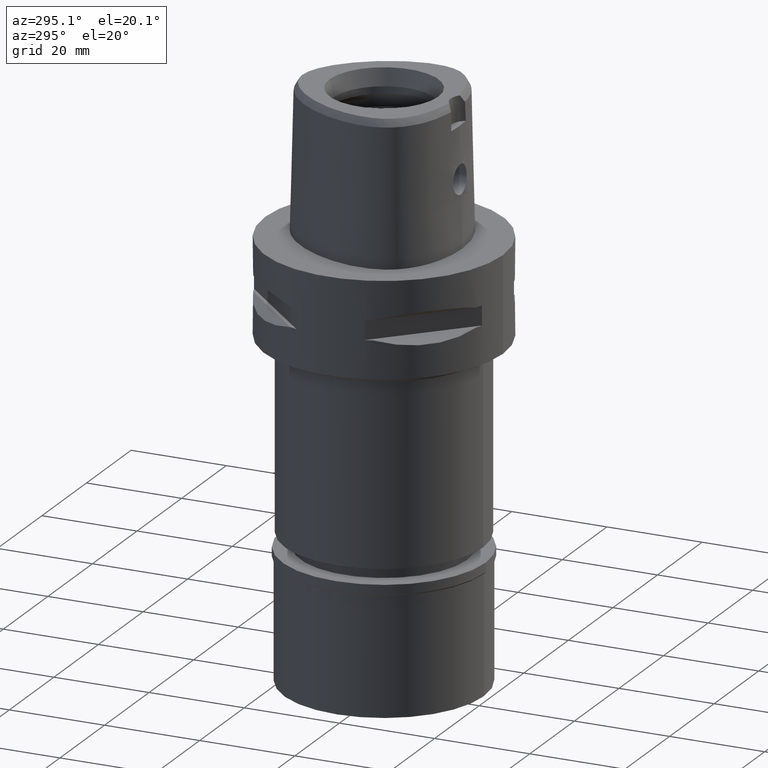
[diagram: clean part render]
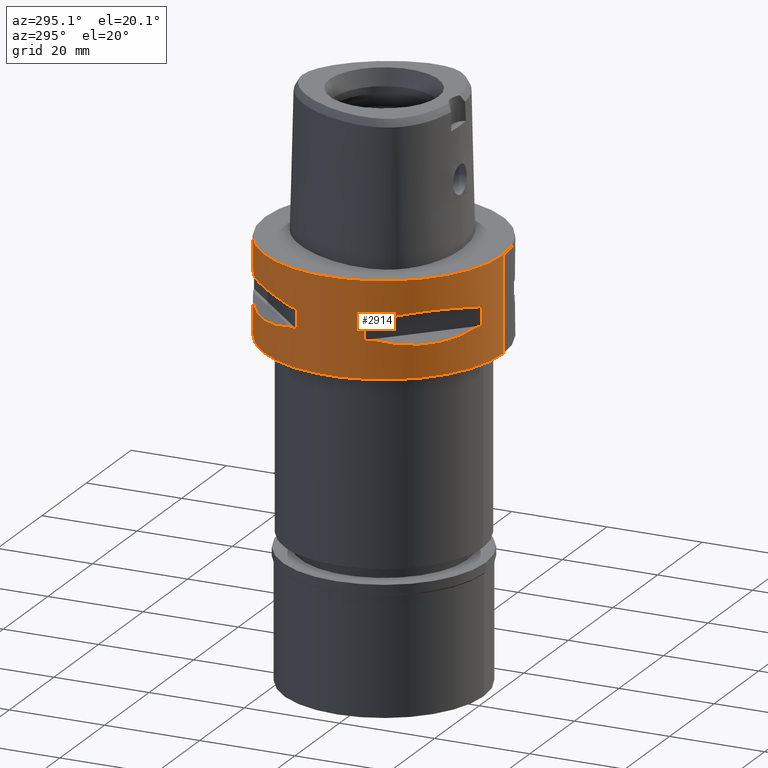
[diagram: same view with one face highlighted and labeled with its STEP entity id]
A machine part, auxiliary view. The second image highlights one B-rep face of the part: STEP entity #2914.
In plain terms, the highlighted cylindrical surface (partial cylindrical patch) has radius 25 mm, axis along (0, 0, -1).
Its self-contained STEP definition (entity closure, byte-faithful):
#2 = CARTESIAN_POINT ( 'NONE',  ( -22.81626994450270374, 10.38516041961251268, -12.49816953212508608 ) ) ;
#28 = EDGE_LOOP ( 'NONE', ( #3146, #2766, #470, #1079 ) ) ;
#30 = CARTESIAN_POINT ( 'NONE',  ( -23.45715880140000209, 8.646484890751999330, -7.949999999998999201 ) ) ;
#98 = CARTESIAN_POINT ( 'NONE',  ( -14.85488513037629943, -20.11654071403241417, -13.22076716108376360 ) ) ;
#100 = AXIS2_PLACEMENT_3D ( 'NONE', #1117, #1436, #628 ) ;
#109 = CARTESIAN_POINT ( 'NONE',  ( -7.159921374230999724, 23.95277699797999915, -7.950000000000000178 ) ) ;
#141 = CARTESIAN_POINT ( 'NONE',  ( 0.0000000000000000000, 1.273020347714000000E-14, -7.950000000000000178 ) ) ;
#158 = CIRCLE ( 'NONE', #839, 25.00000000000001066 ) ;
#159 = CARTESIAN_POINT ( 'NONE',  ( -10.78455809746692928, 22.58788056561475344, -12.56798337783328634 ) ) ;
#177 = VERTEX_POINT ( 'NONE', #2578 ) ;
#182 = ORIENTED_EDGE ( 'NONE', *, *, #3724, .T. ) ;
#210 = LINE ( 'NONE', #562, #618 ) ;
#211 = CARTESIAN_POINT ( 'NONE',  ( -13.62920640916616577, -20.95817024473919687, -13.06397973560672554 ) ) ;
#240 = AXIS2_PLACEMENT_3D ( 'NONE', #3458, #3840, #2343 ) ;
#255 = CARTESIAN_POINT ( 'NONE',  ( -8.646484890756999775, 23.45715880140000209, -12.05000000000000071 ) ) ;
#280 = CARTESIAN_POINT ( 'NONE',  ( -23.45715880140000209, 8.646484890751999330, -7.949999999998999201 ) ) ;
#298 = EDGE_CURVE ( 'NONE', #1573, #1024, #4476, .T. ) ;
#320 = CIRCLE ( 'NONE', #911, 25.00000000000001066 ) ;
#375 = CARTESIAN_POINT ( 'NONE',  ( -20.92801700160071476, 13.67544437571354266, -13.07054629644097687 ) ) ;
#376 = ORIENTED_EDGE ( 'NONE', *, *, #3184, .F. ) ;
#385 = CARTESIAN_POINT ( 'NONE',  ( 0.0000000000000000000, 1.273020347714000000E-14, -12.05000000000000071 ) ) ;
#414 = CIRCLE ( 'NONE', #1345, 24.99999999999999645 ) ;
#415 = FACE_BOUND ( 'NONE', #3297, .T. ) ;
#439 = CARTESIAN_POINT ( 'NONE',  ( -8.646484890751999330, -23.45715880140000209, -12.05000000000000071 ) ) ;
#444 = CARTESIAN_POINT ( 'NONE',  ( -8.646484890751999330, -23.45715880140000209, -7.949999999998999201 ) ) ;
#465 = EDGE_CURVE ( 'NONE', #1094, #1776, #414, .T. ) ;
#470 = ORIENTED_EDGE ( 'NONE', *, *, #2762, .T. ) ;
#503 = CARTESIAN_POINT ( 'NONE',  ( -21.20561591939681989, -13.24197703503267753, -13.00691327926098140 ) ) ;
#535 = CIRCLE ( 'NONE', #2973, 24.99999999999999645 ) ;
#536 = CARTESIAN_POINT ( 'NONE',  ( -20.11654071400031540, 14.85488513041178749, -13.22076716108514027 ) ) ;
#542 = DIRECTION ( 'NONE',  ( 0.0000000000000000000, 0.0000000000000000000, 1.000000000000000000 ) ) ;
#545 = CARTESIAN_POINT ( 'NONE',  ( 0.0000000000000000000, 25.00000000000000000, 0.0000000000000000000 ) ) ;
#547 = EDGE_CURVE ( 'NONE', #3440, #1573, #1122, .T. ) ;
#562 = CARTESIAN_POINT ( 'NONE',  ( 0.0000000000000000000, -25.00000000000000000, 0.0000000000000000000 ) ) ;
#588 = CARTESIAN_POINT ( 'NONE',  ( -8.646484890751999330, 23.45715880140000209, -7.949999999998999201 ) ) ;
#609 = CARTESIAN_POINT ( 'NONE',  ( -21.05082155772163333, -13.48572973711064193, -13.04323036965292637 ) ) ;
#618 = VECTOR ( 'NONE', #2470, 1000.000000000000000 ) ;
#628 = DIRECTION ( 'NONE',  ( 0.0000000000000000000, -1.000000000000000000, 0.0000000000000000000 ) ) ;
#672 = CARTESIAN_POINT ( 'NONE',  ( -23.95277699797999915, -7.159921374230999724, -12.05000000000000071 ) ) ;
#692 = ORIENTED_EDGE ( 'NONE', *, *, #2735, .T. ) ;
#765 = CARTESIAN_POINT ( 'NONE',  ( 0.0000000000000000000, 1.273020347714000000E-14, -7.950000000000000178 ) ) ;
#821 = CARTESIAN_POINT ( 'NONE',  ( -15.02698525050127465, -20.06074199764947963, -6.733118915116993008 ) ) ;
#822 = CARTESIAN_POINT ( 'NONE',  ( -23.95277699797999915, 7.159921374235000080, -12.05000000000000071 ) ) ;
#839 = AXIS2_PLACEMENT_3D ( 'NONE', #4411, #1418, #2934 ) ;
#860 = CARTESIAN_POINT ( 'NONE',  ( -23.13678124605149833, -9.515641234297431694, -12.27403800212630891 ) ) ;
#896 = CARTESIAN_POINT ( 'NONE',  ( -19.18226349636000805, 16.07509500021993887, -13.33749867752047358 ) ) ;
#911 = AXIS2_PLACEMENT_3D ( 'NONE', #765, #1895, #4504 ) ;
#916 = CARTESIAN_POINT ( 'NONE',  ( -20.88268233905774807, 13.74471461762043312, -13.08031795579756640 ) ) ;
#972 = CARTESIAN_POINT ( 'NONE',  ( -8.646484890756999775, 23.45715880140000209, -12.05000000000000071 ) ) ;
#1014 = AXIS2_PLACEMENT_3D ( 'NONE', #2845, #3144, #1274 ) ;
#1022 = CARTESIAN_POINT ( 'NONE',  ( -11.99631184311074605, 22.00754773658079344, -7.175632472892015556 ) ) ;
#1024 = VERTEX_POINT ( 'NONE', #2434 ) ;
#1035 = DIRECTION ( 'NONE',  ( -0.9581110799190402094, -0.2863968549694120291, 0.0000000000000000000 ) ) ;
#1079 = ORIENTED_EDGE ( 'NONE', *, *, #3463, .T. ) ;
#1090 = CARTESIAN_POINT ( 'NONE',  ( -20.06074199764948673, 15.02698525050129064, -6.733118915116993008 ) ) ;
#1094 = VERTEX_POINT ( 'NONE', #2962 ) ;
#1117 = CARTESIAN_POINT ( 'NONE',  ( 0.0000000000000000000, 1.273020347714000000E-14, 0.0000000000000000000 ) ) ;
#1122 = B_SPLINE_CURVE_WITH_KNOTS ( 'NONE', 3,
 ( #2296, #3101, #2621, #2270, #2248, #3801, #821, #4119, #2323, #444 ),
 .UNSPECIFIED., .F., .F.,
 ( 4, 2, 2, 2, 4 ),
 ( 0.0000000000000000000, 0.2499999999999998335, 0.4999999999999996669, 0.7499999999999997780, 1.000000000000000000 ),
 .UNSPECIFIED. ) ;
#1165 = LINE ( 'NONE', #109, #2655 ) ;
#1169 = EDGE_CURVE ( 'NONE', #2695, #2821, #4379, .T. ) ;
#1212 = CARTESIAN_POINT ( 'NONE',  ( -13.74471461761470792, -20.88268233906292437, -13.08031795579734791 ) ) ;
#1222 = EDGE_CURVE ( 'NONE', #1094, #177, #1165, .T. ) ;
#1274 = DIRECTION ( 'NONE',  ( -0.2863968549694120291, -0.9581110799190402094, 0.0000000000000000000 ) ) ;
#1297 = CARTESIAN_POINT ( 'NONE',  ( -20.77616787492827655, 13.90573822668830140, -13.10257122103331362 ) ) ;
#1312 = EDGE_CURVE ( 'NONE', #2784, #3961, #4530, .T. ) ;
#1321 = CARTESIAN_POINT ( 'NONE',  ( -10.38516041956038016, -22.81626994452193458, -12.49816953211165860 ) ) ;
#1345 = AXIS2_PLACEMENT_3D ( 'NONE', #141, #3748, #3076 ) ;
#1348 = CARTESIAN_POINT ( 'NONE',  ( -23.45715880140000209, -8.646484890751999330, -7.949999999998999201 ) ) ;
#1367 = CARTESIAN_POINT ( 'NONE',  ( -18.92421359266165126, -16.43106916201666934, -13.37747608848409264 ) ) ;
#1398 = CARTESIAN_POINT ( 'NONE',  ( -23.95277699797999915, 7.159921374230999724, -12.05000000000000071 ) ) ;
#1418 = DIRECTION ( 'NONE',  ( 0.0000000000000000000, 0.0000000000000000000, -1.000000000000000000 ) ) ;
#1436 = DIRECTION ( 'NONE',  ( 0.0000000000000000000, 0.0000000000000000000, -1.000000000000000000 ) ) ;
#1479 = VECTOR ( 'NONE', #1564, 1000.000000000000000 ) ;
#1485 = CARTESIAN_POINT ( 'NONE',  ( -15.02693924547573445, 20.06077645874711024, -6.733132781305680048 ) ) ;
#1543 = EDGE_CURVE ( 'NONE', #3621, #2821, #210, .T. ) ;
#1564 = DIRECTION ( 'NONE',  ( 0.0000000000000000000, 0.0000000000000000000, -1.000000000000000000 ) ) ;
#1573 = VERTEX_POINT ( 'NONE', #4346 ) ;
#1578 = VECTOR ( 'NONE', #3900, 1000.000000000000000 ) ;
#1581 = CARTESIAN_POINT ( 'NONE',  ( -14.22535762327708397, -20.56020460723788901, -13.14488865845220289 ) ) ;
#1642 = CARTESIAN_POINT ( 'NONE',  ( -12.89853354822446718, 21.41803043592210543, -12.95342092614171570 ) ) ;
#1657 = CARTESIAN_POINT ( 'NONE',  ( -12.20403021318853476, 21.82791133048002763, -12.83722430138890225 ) ) ;
#1689 = CARTESIAN_POINT ( 'NONE',  ( -13.60713573003076249, -20.97251445226584110, -13.06082541678113174 ) ) ;
#1702 = VERTEX_POINT ( 'NONE', #4659 ) ;
#1776 = VERTEX_POINT ( 'NONE', #588 ) ;
#1802 = CIRCLE ( 'NONE', #3461, 24.99999999999999645 ) ;
#1830 = ORIENTED_EDGE ( 'NONE', *, *, #1312, .F. ) ;
#1872 = ORIENTED_EDGE ( 'NONE', *, *, #2386, .F. ) ;
#1894 = CARTESIAN_POINT ( 'NONE',  ( 0.0000000000000000000, 1.273020347714000000E-14, 3.950000000000000178 ) ) ;
#1895 = DIRECTION ( 'NONE',  ( 0.0000000000000000000, 0.0000000000000000000, 1.000000000000000000 ) ) ;
#1930 = DIRECTION ( 'NONE',  ( -0.3458593956303108730, 0.9382863520558295534, 0.0000000000000000000 ) ) ;
#1950 = AXIS2_PLACEMENT_3D ( 'NONE', #1894, #4161, #4527 ) ;
#1973 = EDGE_LOOP ( 'NONE', ( #2046, #376, #692, #1872, #2203, #1830, #3021, #4198 ) ) ;
#1979 = VERTEX_POINT ( 'NONE', #3756 ) ;
#1984 = ORIENTED_EDGE ( 'NONE', *, *, #465, .T. ) ;
#1988 = CARTESIAN_POINT ( 'NONE',  ( -21.01958685664054372, -13.53433973752400377, -13.05032380590162511 ) ) ;
#2046 = ORIENTED_EDGE ( 'NONE', *, *, #298, .T. ) ;
#2049 = DIRECTION ( 'NONE',  ( -0.3458593956303108730, -0.9382863520558295534, 0.0000000000000000000 ) ) ;
#2087 = EDGE_CURVE ( 'NONE', #2494, #1702, #2161, .T. ) ;
#2093 = B_SPLINE_CURVE_WITH_KNOTS ( 'NONE', 3,
 ( #4382, #3644, #1022, #1485, #2994, #2514, #1090, #3354, #4403, #280 ),
 .UNSPECIFIED., .F., .F.,
 ( 4, 2, 2, 2, 4 ),
 ( 0.0000000000000000000, 0.2500000000000000000, 0.5000000000000000000, 0.7500000000000000000, 1.000000000000000000 ),
 .UNSPECIFIED. ) ;
#2097 = CARTESIAN_POINT ( 'NONE',  ( 0.0000000000000000000, -25.00000000000000000, 0.0000000000000000000 ) ) ;
#2099 = CARTESIAN_POINT ( 'NONE',  ( -21.00321793043546847, -13.55971422200801157, -13.05400030967367364 ) ) ;
#2149 = EDGE_CURVE ( 'NONE', #2784, #3440, #535, .T. ) ;
#2161 = LINE ( 'NONE', #1398, #4607 ) ;
#2173 = EDGE_CURVE ( 'NONE', #4362, #3961, #158, .T. ) ;
#2203 = ORIENTED_EDGE ( 'NONE', *, *, #2173, .T. ) ;
#2248 = CARTESIAN_POINT ( 'NONE',  ( -18.93096040781556511, -16.42437865151180176, -6.622505547253060065 ) ) ;
#2263 = FACE_OUTER_BOUND ( 'NONE', #28, .T. ) ;
#2270 = CARTESIAN_POINT ( 'NONE',  ( -20.06077645874710669, -15.02693924547572557, -6.733132781305681824 ) ) ;
#2296 = CARTESIAN_POINT ( 'NONE',  ( -23.45715880140000209, -8.646484890751999330, -7.949999999998999201 ) ) ;
#2308 = CARTESIAN_POINT ( 'NONE',  ( -20.02826730454556170, -15.06560254766883666, -13.27075471794798744 ) ) ;
#2323 = CARTESIAN_POINT ( 'NONE',  ( -10.36318218122985790, -22.82437128822188299, -7.507495686399606960 ) ) ;
#2343 = DIRECTION ( 'NONE',  ( 0.0000000000000000000, 1.000000000000000000, 0.0000000000000000000 ) ) ;
#2350 = VECTOR ( 'NONE', #2442, 1000.000000000000000 ) ;
#2386 = EDGE_CURVE ( 'NONE', #4362, #4480, #4451, .T. ) ;
#2404 = EDGE_CURVE ( 'NONE', #2840, #1702, #320, .T. ) ;
#2434 = CARTESIAN_POINT ( 'NONE',  ( -7.159921374230999724, -23.95277699797999915, -7.950000000000000178 ) ) ;
#2442 = DIRECTION ( 'NONE',  ( 0.0000000000000000000, 0.0000000000000000000, 1.000000000000000000 ) ) ;
#2470 = DIRECTION ( 'NONE',  ( 0.0000000000000000000, 0.0000000000000000000, -1.000000000000000000 ) ) ;
#2474 = LINE ( 'NONE', #545, #1578 ) ;
#2487 = CARTESIAN_POINT ( 'NONE',  ( -9.515641234306031038, 23.13678124604833286, -12.27403800212850093 ) ) ;
#2494 = VERTEX_POINT ( 'NONE', #822 ) ;
#2514 = CARTESIAN_POINT ( 'NONE',  ( -18.93096040781557221, 16.42437865151181953, -6.622496303226937719 ) ) ;
#2532 = DIRECTION ( 'NONE',  ( 0.0000000000000000000, 0.0000000000000000000, -1.000000000000000000 ) ) ;
#2542 = LINE ( 'NONE', #3575, #2350 ) ;
#2578 = CARTESIAN_POINT ( 'NONE',  ( -7.159921374230999724, 23.95277699797999915, -12.05000000000000071 ) ) ;
#2613 = FACE_BOUND ( 'NONE', #1973, .T. ) ;
#2621 = CARTESIAN_POINT ( 'NONE',  ( -22.00754773658078634, -11.99631184311072651, -7.175632472892016445 ) ) ;
#2655 = VECTOR ( 'NONE', #3505, 1000.000000000000000 ) ;
#2694 = CARTESIAN_POINT ( 'NONE',  ( -23.95277699797999915, -7.159921374230999724, -7.950000000000000178 ) ) ;
#2695 = VERTEX_POINT ( 'NONE', #4673 ) ;
#2735 = EDGE_CURVE ( 'NONE', #1979, #4480, #3997, .T. ) ;
#2749 = EDGE_CURVE ( 'NONE', #3647, #3556, #2761, .T. ) ;
#2761 = B_SPLINE_CURVE_WITH_KNOTS ( 'NONE', 3,
 ( #972, #2487, #159, #1657, #1642, #3169, #3213, #4633, #3939, #2781, #2800, #4273, #4291, #896, #536, #4654, #1297, #916, #375, #4045, #4800, #3335, #2, #4064 ),
 .UNSPECIFIED., .F., .F.,
 ( 4, 1, 1, 1, 1, 1, 2, 2, 2, 1, 1, 1, 1, 1, 2, 2, 4 ),
 ( 0.0000000000000000000, 0.1250000000000042744, 0.1875000000000064115, 0.2187500000000075218, 0.2343750000000079659, 0.2421875000000081601, 0.2460937500000082989, 0.2500000000000084377, 0.5000000000000065503, 0.6250000000000055511, 0.6875000000000051070, 0.7187500000000047740, 0.7343750000000045519, 0.7421875000000042188, 0.7460937500000041078, 0.7500000000000039968, 1.000000000000000000 ),
 .UNSPECIFIED. ) ;
#2762 = EDGE_CURVE ( 'NONE', #3621, #4110, #3754, .T. ) ;
#2766 = ORIENTED_EDGE ( 'NONE', *, *, #1543, .F. ) ;
#2781 = CARTESIAN_POINT ( 'NONE',  ( -13.55971422200804888, 21.00321793043550755, -13.05400030967368785 ) ) ;
#2782 = EDGE_CURVE ( 'NONE', #1776, #2840, #2093, .T. ) ;
#2784 = VERTEX_POINT ( 'NONE', #2928 ) ;
#2800 = CARTESIAN_POINT ( 'NONE',  ( -15.06560254766712248, 20.02826730454206228, -13.27075471794584693 ) ) ;
#2821 = VERTEX_POINT ( 'NONE', #4429 ) ;
#2840 = VERTEX_POINT ( 'NONE', #30 ) ;
#2845 = CARTESIAN_POINT ( 'NONE',  ( 0.0000000000000000000, 1.273020347714000000E-14, -12.05000000000000071 ) ) ;
#2887 = CARTESIAN_POINT ( 'NONE',  ( 0.0000000000000000000, 1.273020347714000000E-14, -7.950000000000000178 ) ) ;
#2914 = ADVANCED_FACE ( 'NONE', ( #2263, #415, #2613 ), #3404, .T. ) ;
#2928 = CARTESIAN_POINT ( 'NONE',  ( -23.95277699797999915, -7.159921374235000080, -7.950000000000000178 ) ) ;
#2934 = DIRECTION ( 'NONE',  ( -0.9382863520558295534, -0.3458593956303108730, 0.0000000000000000000 ) ) ;
#2942 = CARTESIAN_POINT ( 'NONE',  ( -8.646484890751999330, -23.45715880140000209, -12.05000000000000071 ) ) ;
#2962 = CARTESIAN_POINT ( 'NONE',  ( -7.159921374235000080, 23.95277699797999915, -7.950000000000000178 ) ) ;
#2966 = EDGE_CURVE ( 'NONE', #3647, #177, #4624, .T. ) ;
#2973 = AXIS2_PLACEMENT_3D ( 'NONE', #2887, #4395, #1035 ) ;
#2994 = CARTESIAN_POINT ( 'NONE',  ( -16.42437865151180887, 18.93096040781557932, -6.622505547253060065 ) ) ;
#2998 = AXIS2_PLACEMENT_3D ( 'NONE', #4636, #542, #2049 ) ;
#3021 = ORIENTED_EDGE ( 'NONE', *, *, #2149, .T. ) ;
#3076 = DIRECTION ( 'NONE',  ( -0.2863968549694120291, 0.9581110799190402094, 0.0000000000000000000 ) ) ;
#3085 = CARTESIAN_POINT ( 'NONE',  ( -13.90573822667720982, -20.77616787493829875, -13.10257122103289262 ) ) ;
#3101 = CARTESIAN_POINT ( 'NONE',  ( -22.82438450745432235, -10.36314631860613389, -7.507504930525400688 ) ) ;
#3131 = ORIENTED_EDGE ( 'NONE', *, *, #1222, .F. ) ;
#3144 = DIRECTION ( 'NONE',  ( 0.0000000000000000000, 0.0000000000000000000, -1.000000000000000000 ) ) ;
#3146 = ORIENTED_EDGE ( 'NONE', *, *, #1169, .T. ) ;
#3169 = CARTESIAN_POINT ( 'NONE',  ( -13.24197703503622137, 21.20561591939551249, -13.00691327926188201 ) ) ;
#3184 = EDGE_CURVE ( 'NONE', #1979, #1024, #2542, .T. ) ;
#3213 = CARTESIAN_POINT ( 'NONE',  ( -13.41274673326554101, 21.09754014382029297, -13.03250796600789663 ) ) ;
#3217 = CARTESIAN_POINT ( 'NONE',  ( -21.09754014382098930, -13.41274673326371136, -13.03250796600744721 ) ) ;
#3219 = AXIS2_PLACEMENT_3D ( 'NONE', #385, #3782, #1930 ) ;
#3297 = EDGE_LOOP ( 'NONE', ( #4049, #3428, #182, #4190, #4600, #3131, #1984, #3614 ) ) ;
#3335 = CARTESIAN_POINT ( 'NONE',  ( -21.99328990738197120, 12.03062603426555199, -12.83394786308387481 ) ) ;
#3348 = CARTESIAN_POINT ( 'NONE',  ( 0.0000000000000000000, 1.273020347714000000E-14, -12.05000000000000071 ) ) ;
#3354 = CARTESIAN_POINT ( 'NONE',  ( -22.00752022556850207, 11.99636231264438813, -7.175618606703325852 ) ) ;
#3404 = CYLINDRICAL_SURFACE ( 'NONE', #1950, 25.00000000000000000 ) ;
#3428 = ORIENTED_EDGE ( 'NONE', *, *, #2087, .F. ) ;
#3440 = VERTEX_POINT ( 'NONE', #1348 ) ;
#3458 = CARTESIAN_POINT ( 'NONE',  ( 0.0000000000000000000, 1.273020347714000000E-14, -20.00000000000000000 ) ) ;
#3461 = AXIS2_PLACEMENT_3D ( 'NONE', #3348, #2532, #4039 ) ;
#3463 = EDGE_CURVE ( 'NONE', #4110, #2695, #2474, .T. ) ;
#3501 = CARTESIAN_POINT ( 'NONE',  ( -13.67544437571023153, -20.92801700160370970, -13.07054629644085786 ) ) ;
#3505 = DIRECTION ( 'NONE',  ( 0.0000000000000000000, 0.0000000000000000000, -1.000000000000000000 ) ) ;
#3556 = VERTEX_POINT ( 'NONE', #4357 ) ;
#3575 = CARTESIAN_POINT ( 'NONE',  ( -7.159921374230999724, -23.95277699797999915, -12.05000000000000071 ) ) ;
#3579 = CARTESIAN_POINT ( 'NONE',  ( -22.58788056562029922, -10.78455809745187111, -12.56798337782941744 ) ) ;
#3606 = DIRECTION ( 'NONE',  ( 0.0000000000000000000, 0.0000000000000000000, 1.000000000000000000 ) ) ;
#3614 = ORIENTED_EDGE ( 'NONE', *, *, #2782, .T. ) ;
#3621 = VERTEX_POINT ( 'NONE', #2097 ) ;
#3644 = CARTESIAN_POINT ( 'NONE',  ( -10.36314631860613922, 22.82438450745433300, -7.507504930525399800 ) ) ;
#3647 = VERTEX_POINT ( 'NONE', #255 ) ;
#3724 = EDGE_CURVE ( 'NONE', #2494, #3556, #1802, .T. ) ;
#3748 = DIRECTION ( 'NONE',  ( 0.0000000000000000000, 0.0000000000000000000, 1.000000000000000000 ) ) ;
#3754 = CIRCLE ( 'NONE', #100, 25.00000000000000000 ) ;
#3756 = CARTESIAN_POINT ( 'NONE',  ( -7.159921374235000080, -23.95277699797999915, -12.05000000000000071 ) ) ;
#3782 = DIRECTION ( 'NONE',  ( 0.0000000000000000000, 0.0000000000000000000, -1.000000000000000000 ) ) ;
#3801 = CARTESIAN_POINT ( 'NONE',  ( -16.42437865151179821, -18.93096040781555445, -6.622496303226938608 ) ) ;
#3809 = CARTESIAN_POINT ( 'NONE',  ( -16.07509500017260251, -19.18226349640280048, -13.33749867751863327 ) ) ;
#3840 = DIRECTION ( 'NONE',  ( 0.0000000000000000000, 0.0000000000000000000, 1.000000000000000000 ) ) ;
#3856 = CARTESIAN_POINT ( 'NONE',  ( -21.82791133048418786, -12.20403021317722292, -12.83722430138600323 ) ) ;
#3900 = DIRECTION ( 'NONE',  ( 0.0000000000000000000, 0.0000000000000000000, -1.000000000000000000 ) ) ;
#3939 = CARTESIAN_POINT ( 'NONE',  ( -13.53433973752455621, 21.01958685664031989, -13.05032380590174235 ) ) ;
#3961 = VERTEX_POINT ( 'NONE', #672 ) ;
#3971 = CARTESIAN_POINT ( 'NONE',  ( -21.41803043592453548, -12.89853354821786446, -12.95342092614003171 ) ) ;
#3985 = CARTESIAN_POINT ( 'NONE',  ( 0.0000000000000000000, 25.00000000000000000, 0.0000000000000000000 ) ) ;
#3997 = CIRCLE ( 'NONE', #1014, 24.99999999999999645 ) ;
#4039 = DIRECTION ( 'NONE',  ( -0.9581110799190402094, 0.2863968549694120291, 0.0000000000000000000 ) ) ;
#4045 = CARTESIAN_POINT ( 'NONE',  ( -20.95817024473767987, 13.62920640916783555, -13.06397973560677883 ) ) ;
#4049 = ORIENTED_EDGE ( 'NONE', *, *, #2404, .T. ) ;
#4064 = CARTESIAN_POINT ( 'NONE',  ( -23.45715880140000209, 8.646484890751999330, -12.05000000000000071 ) ) ;
#4110 = VERTEX_POINT ( 'NONE', #3985 ) ;
#4119 = CARTESIAN_POINT ( 'NONE',  ( -11.99636231264437747, -22.00752022556847720, -7.175618606703324076 ) ) ;
#4161 = DIRECTION ( 'NONE',  ( 0.0000000000000000000, 0.0000000000000000000, -1.000000000000000000 ) ) ;
#4179 = CARTESIAN_POINT ( 'NONE',  ( -17.05439749816580886, -18.30096971348830692, -13.37751056790007809 ) ) ;
#4190 = ORIENTED_EDGE ( 'NONE', *, *, #2749, .F. ) ;
#4198 = ORIENTED_EDGE ( 'NONE', *, *, #547, .T. ) ;
#4273 = CARTESIAN_POINT ( 'NONE',  ( -16.43106916206558665, 18.92421359260760383, -13.37747608848198411 ) ) ;
#4291 = CARTESIAN_POINT ( 'NONE',  ( -18.30096971346383938, 17.05439749819285566, -13.37751056790111903 ) ) ;
#4346 = CARTESIAN_POINT ( 'NONE',  ( -8.646484890751999330, -23.45715880140000209, -7.949999999998999201 ) ) ;
#4347 = CARTESIAN_POINT ( 'NONE',  ( -23.45715880140000209, -8.646484890756999775, -12.05000000000000071 ) ) ;
#4357 = CARTESIAN_POINT ( 'NONE',  ( -23.45715880140000209, 8.646484890751999330, -12.05000000000000071 ) ) ;
#4362 = VERTEX_POINT ( 'NONE', #4834 ) ;
#4379 = CIRCLE ( 'NONE', #240, 25.00000000000000000 ) ;
#4382 = CARTESIAN_POINT ( 'NONE',  ( -8.646484890751999330, 23.45715880140000209, -7.949999999998999201 ) ) ;
#4395 = DIRECTION ( 'NONE',  ( 0.0000000000000000000, 0.0000000000000000000, 1.000000000000000000 ) ) ;
#4403 = CARTESIAN_POINT ( 'NONE',  ( -22.82437128822189010, 10.36318218122987744, -7.507495686399606960 ) ) ;
#4411 = CARTESIAN_POINT ( 'NONE',  ( 0.0000000000000000000, 1.273020347714000000E-14, -12.05000000000000071 ) ) ;
#4429 = CARTESIAN_POINT ( 'NONE',  ( 0.0000000000000000000, -25.00000000000000000, -20.00000000000000000 ) ) ;
#4451 = B_SPLINE_CURVE_WITH_KNOTS ( 'NONE', 3,
 ( #4347, #860, #3579, #3856, #3971, #503, #3217, #609, #1988, #2099, #2308, #1367, #4179, #3809, #98, #1581, #3085, #1212, #3501, #211, #1689, #4679, #1321, #439 ),
 .UNSPECIFIED., .F., .F.,
 ( 4, 1, 1, 1, 1, 1, 2, 2, 2, 1, 1, 1, 1, 1, 2, 2, 4 ),
 ( 0.0000000000000000000, 0.1249999999999980294, 0.1874999999999968636, 0.2187499999999962530, 0.2343749999999959754, 0.2421874999999957812, 0.2460937499999955869, 0.2499999999999953926, 0.5000000000000005551, 0.6250000000000031086, 0.6875000000000044409, 0.7187500000000051070, 0.7343750000000054401, 0.7421875000000055511, 0.7460937500000055511, 0.7500000000000055511, 1.000000000000000000 ),
 .UNSPECIFIED. ) ;
#4476 = CIRCLE ( 'NONE', #2998, 25.00000000000001066 ) ;
#4480 = VERTEX_POINT ( 'NONE', #2942 ) ;
#4504 = DIRECTION ( 'NONE',  ( -0.9382863520558295534, 0.3458593956303108730, 0.0000000000000000000 ) ) ;
#4527 = DIRECTION ( 'NONE',  ( 0.0000000000000000000, -1.000000000000000000, 0.0000000000000000000 ) ) ;
#4530 = LINE ( 'NONE', #2694, #1479 ) ;
#4600 = ORIENTED_EDGE ( 'NONE', *, *, #2966, .T. ) ;
#4607 = VECTOR ( 'NONE', #3606, 1000.000000000000000 ) ;
#4624 = CIRCLE ( 'NONE', #3219, 25.00000000000001066 ) ;
#4633 = CARTESIAN_POINT ( 'NONE',  ( -13.48572973711170953, 21.05082155772122832, -13.04323036965318039 ) ) ;
#4636 = CARTESIAN_POINT ( 'NONE',  ( 0.0000000000000000000, 1.273020347714000000E-14, -7.950000000000000178 ) ) ;
#4654 = CARTESIAN_POINT ( 'NONE',  ( -20.56020460721917331, 14.22535762329778386, -13.14488865845300047 ) ) ;
#4659 = CARTESIAN_POINT ( 'NONE',  ( -23.95277699797999915, 7.159921374230999724, -7.950000000000000178 ) ) ;
#4673 = CARTESIAN_POINT ( 'NONE',  ( 0.0000000000000000000, 25.00000000000000000, -20.00000000000000000 ) ) ;
#4679 = CARTESIAN_POINT ( 'NONE',  ( -12.03062603421342125, -21.99328990740118428, -12.83394786307044555 ) ) ;
#4800 = CARTESIAN_POINT ( 'NONE',  ( -20.97251445226615019, 13.60713573002994181, -13.06082541678091324 ) ) ;
#4834 = CARTESIAN_POINT ( 'NONE',  ( -23.45715880140000209, -8.646484890756999775, -12.05000000000000071 ) ) ;